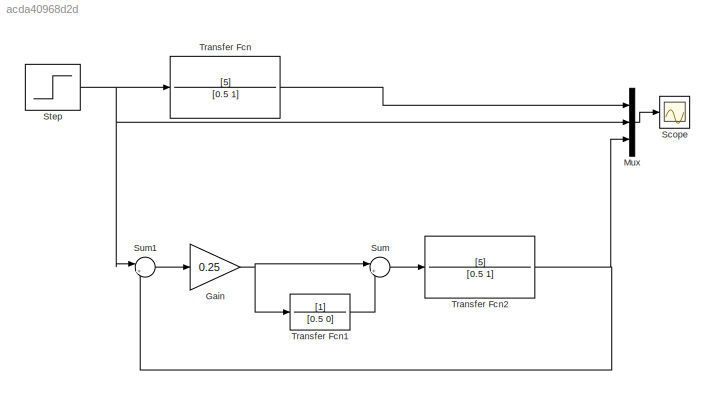
MODEL slx_acda40968d2d
KIND model
CONFIG AbsTol = auto
CONFIG EnableMultiTasking = off
CONFIG FixedStep = auto
CONFIG MaxStep = auto
CONFIG MinStep = auto
CONFIG RelTol = 1e-3
CONFIG SampleTimeConstraint = Unconstrained
CONFIG SolverName = VariableStepAuto
CONFIG StartTime = 0.0
CONFIG StopTime = 10.0
BLOCK [Gain] Gain
  Gain = 0.25
BLOCK [Mux] Mux
  DisplayOption = bar
  Inputs = 3
BLOCK [Scope] Scope
  Floating = off
  NumInputPorts = 1
  ScopeSpecificationString = Simulink.scopes.TimeScopeBlockCfg('CurrentConfiguration', extmgr.ConfigurationSet(extmgr.Configuration('Core','General UI',true,'FigureColor',[1 1 1]),extmgr.Configuration('Core','Source UI',true),extmgr.Configuration('Sources','WiredSimulink',true),extmgr.Configuration('Visuals','Time Domain',true,'SerializedDisplays',{struct('MinYLimReal','-0.625','MaxYLimReal','5.625','YLabelReal','','MinYLimMa...<+1502ch>
BLOCK [Step] Step
  SampleTime = 0
BLOCK [Sum] Sum
  Inputs = |++
BLOCK [Sum] Sum1
  Inputs = |+-
BLOCK [TransferFcn] Transfer Fcn
  Denominator = [0.5 1]
  Numerator = [5]
BLOCK [TransferFcn] Transfer Fcn1
  Denominator = [0.5 0]
BLOCK [TransferFcn] Transfer Fcn2
  Denominator = [0.5 1]
  Numerator = [5]
NET Gain:1 -> Sum:1, Transfer Fcn1:1
LINE Mux:1 -> Scope:1
NET Step:1 -> Mux:2, Sum1:1, Transfer Fcn:1
LINE Sum1:1 -> Gain:1
LINE Sum:1 -> Transfer Fcn2:1
LINE Transfer Fcn1:1 -> Sum:2
NET Transfer Fcn2:1 -> Mux:3, Sum1:2
LINE Transfer Fcn:1 -> Mux:1
note: NET lines group one-source signal fan-out (src -> all destinations, sorted); 1:1 wires keep LINE
